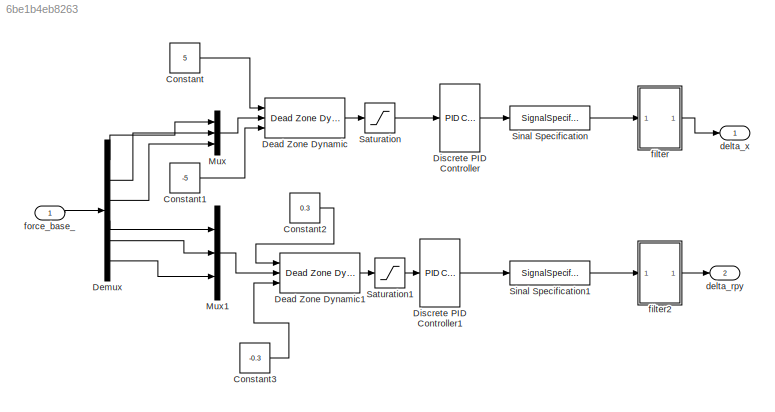
MODEL slx_6be1b4eb8263
KIND model
CONFIG AbsTol = auto
CONFIG EnableMultiTasking = off
CONFIG FixedStep = 0.002
CONFIG MaxStep = auto
CONFIG MinStep = auto
CONFIG RelTol = 1e-3
CONFIG SampleTimeConstraint = Unconstrained
CONFIG Solver = FixedStepDiscrete
CONFIG SolverName = FixedStepDiscrete
CONFIG StartTime = 0.0
CONFIG StopTime = 10
BLOCK [Constant] Constant
  Value = 5
BLOCK [Constant] Constant1
  Value = -5
BLOCK [Constant] Constant2
  Value = 0.3
BLOCK [Constant] Constant3
  Value = -0.3
BLOCK [Reference] Dead Zone Dynamic  REF=simulink/Discontinuities/Dead Zone
Dynamic
  Ports = [3, 1]
  SourceBlock = simulink/Discontinuities/Dead Zone\nDynamic
  SourceType = Dead Zone Dynamic
BLOCK [Reference] Dead Zone Dynamic1  REF=simulink/Discontinuities/Dead Zone
Dynamic
  Ports = [3, 1]
  SourceBlock = simulink/Discontinuities/Dead Zone\nDynamic
  SourceType = Dead Zone Dynamic
BLOCK [Demux] Demux
  DisplayOption = bar
  Outputs = 6
  Ports = [1, 6]
BLOCK [Reference] Discrete PID Controller  REF=simulink/Continuous/PID Controller
  Ports = [1, 1]
  SourceBlock = simulink/Continuous/PID Controller
  SourceType = PID 1dof
BLOCK [Reference] Discrete PID Controller1  REF=simulink/Continuous/PID Controller
  Ports = [1, 1]
  SourceBlock = simulink/Continuous/PID Controller
  SourceType = PID 1dof
BLOCK [Mux] Mux
  DisplayOption = bar
  Inputs = 3
  Ports = [3, 1]
BLOCK [Mux] Mux1
  DisplayOption = bar
  Inputs = 3
  Ports = [3, 1]
BLOCK [Saturate] Saturation
  InputPortMap = u0
  LowerLimit = -40
  Ports = [1, 1]
  UpperLimit = 40
BLOCK [Saturate] Saturation1
  InputPortMap = u0
  LowerLimit = -3
  Ports = [1, 1]
  UpperLimit = 3
BLOCK [SignalSpecification] Sinal Specification
  Dimensions = 3
  OutDataTypeStr = double
BLOCK [SignalSpecification] Sinal Specification1
  Dimensions = 3
  OutDataTypeStr = double
BLOCK [Outport] delta_rpy
  IconDisplay = Port number
  Port = 2
  PortDimensions = 3
BLOCK [Outport] delta_x
  IconDisplay = Port number
  PortDimensions = 3
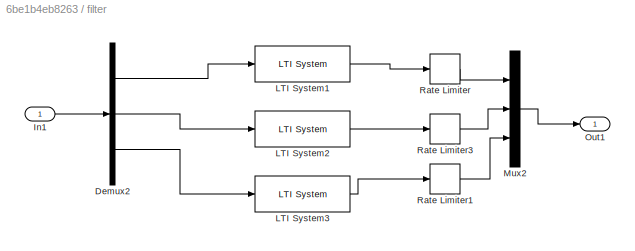
BLOCK [SubSystem] filter
  Ports = [1, 1]
  RequestExecContextInheritance = off
  Variant = off
BLOCK [Demux] filter/Demux2
  DisplayOption = bar
  Outputs = 3
  Ports = [1, 3]
BLOCK [Inport] filter/In1
  IconDisplay = Port number
BLOCK [Reference] filter/LTI System1  REF=cstblocks/LTI System
  Ports = [1, 1]
  SourceBlock = cstblocks/LTI System
  SourceType = LTI Block
BLOCK [Reference] filter/LTI System2  REF=cstblocks/LTI System
  Ports = [1, 1]
  SourceBlock = cstblocks/LTI System
  SourceType = LTI Block
BLOCK [Reference] filter/LTI System3  REF=cstblocks/LTI System
  Ports = [1, 1]
  SourceBlock = cstblocks/LTI System
  SourceType = LTI Block
BLOCK [Mux] filter/Mux2
  DisplayOption = bar
  Inputs = 3
  Ports = [3, 1]
BLOCK [Outport] filter/Out1
  IconDisplay = Port number
BLOCK [RateLimiter] filter/Rate Limiter
  FallingSlewLimit = -x_rate
  RisingSlewLimit = x_rate
  SampleTimeMode = inherited
BLOCK [RateLimiter] filter/Rate Limiter1
  FallingSlewLimit = -x_rate
  RisingSlewLimit = x_rate
  SampleTimeMode = inherited
BLOCK [RateLimiter] filter/Rate Limiter3
  FallingSlewLimit = -x_rate
  RisingSlewLimit = x_rate
  SampleTimeMode = inherited
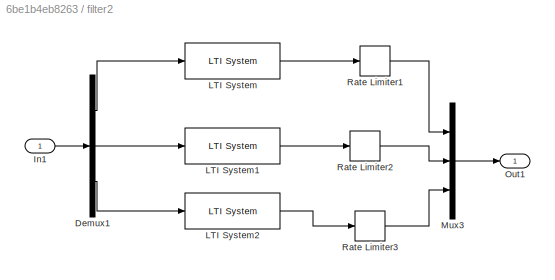
BLOCK [SubSystem] filter2
  Ports = [1, 1]
  RequestExecContextInheritance = off
  Variant = off
BLOCK [Demux] filter2/Demux1
  DisplayOption = bar
  Outputs = 3
  Ports = [1, 3]
BLOCK [Inport] filter2/In1
  IconDisplay = Port number
BLOCK [Reference] filter2/LTI System  REF=cstblocks/LTI System
  Ports = [1, 1]
  SourceBlock = cstblocks/LTI System
  SourceType = LTI Block
BLOCK [Reference] filter2/LTI System1  REF=cstblocks/LTI System
  Ports = [1, 1]
  SourceBlock = cstblocks/LTI System
  SourceType = LTI Block
BLOCK [Reference] filter2/LTI System2  REF=cstblocks/LTI System
  Ports = [1, 1]
  SourceBlock = cstblocks/LTI System
  SourceType = LTI Block
BLOCK [Mux] filter2/Mux3
  DisplayOption = bar
  Inputs = 3
  Ports = [3, 1]
BLOCK [Outport] filter2/Out1
  IconDisplay = Port number
BLOCK [RateLimiter] filter2/Rate Limiter1
  FallingSlewLimit = -x_rate
  RisingSlewLimit = x_rate
  SampleTimeMode = inherited
BLOCK [RateLimiter] filter2/Rate Limiter2
  FallingSlewLimit = -x_rate
  RisingSlewLimit = x_rate
  SampleTimeMode = inherited
BLOCK [RateLimiter] filter2/Rate Limiter3
  FallingSlewLimit = -x_rate
  RisingSlewLimit = x_rate
  SampleTimeMode = inherited
BLOCK [Inport] force_base_
  IconDisplay = Port number
  PortDimensions = 6
LINE Constant1:1 -> Dead Zone Dynamic:3
LINE Constant2:1 -> Dead Zone Dynamic1:1
LINE Constant3:1 -> Dead Zone Dynamic1:3
LINE Constant:1 -> Dead Zone Dynamic:1
LINE Dead Zone Dynamic1:1 -> Saturation1:1
LINE Dead Zone Dynamic:1 -> Saturation:1
LINE Demux:1 -> Mux:1
LINE Demux:2 -> Mux:2
LINE Demux:3 -> Mux:3
LINE Demux:4 -> Mux1:1
LINE Demux:5 -> Mux1:2
LINE Demux:6 -> Mux1:3
LINE Discrete PID Controller1:1 -> Sinal Specification1:1
LINE Discrete PID Controller:1 -> Sinal Specification:1
LINE Mux1:1 -> Dead Zone Dynamic1:2
LINE Mux:1 -> Dead Zone Dynamic:2
LINE Saturation1:1 -> Discrete PID Controller1:1
LINE Saturation:1 -> Discrete PID Controller:1
LINE Sinal Specification1:1 -> filter2:1
LINE Sinal Specification:1 -> filter:1
LINE filter/Demux2:1 -> filter/LTI System1:1
LINE filter/Demux2:2 -> filter/LTI System2:1
LINE filter/Demux2:3 -> filter/LTI System3:1
LINE filter/In1:1 -> filter/Demux2:1
LINE filter/LTI System1:1 -> filter/Rate Limiter:1
LINE filter/LTI System2:1 -> filter/Rate Limiter3:1
LINE filter/LTI System3:1 -> filter/Rate Limiter1:1
LINE filter/Mux2:1 -> filter/Out1:1
LINE filter/Rate Limiter1:1 -> filter/Mux2:3
LINE filter/Rate Limiter3:1 -> filter/Mux2:2
LINE filter/Rate Limiter:1 -> filter/Mux2:1
LINE filter2/Demux1:1 -> filter2/LTI System:1
LINE filter2/Demux1:2 -> filter2/LTI System1:1
LINE filter2/Demux1:3 -> filter2/LTI System2:1
LINE filter2/In1:1 -> filter2/Demux1:1
LINE filter2/LTI System1:1 -> filter2/Rate Limiter2:1
LINE filter2/LTI System2:1 -> filter2/Rate Limiter3:1
LINE filter2/LTI System:1 -> filter2/Rate Limiter1:1
LINE filter2/Mux3:1 -> filter2/Out1:1
LINE filter2/Rate Limiter1:1 -> filter2/Mux3:1
LINE filter2/Rate Limiter2:1 -> filter2/Mux3:2
LINE filter2/Rate Limiter3:1 -> filter2/Mux3:3
LINE filter2:1 -> delta_rpy:1
LINE filter:1 -> delta_x:1
LINE force_base_:1 -> Demux:1
